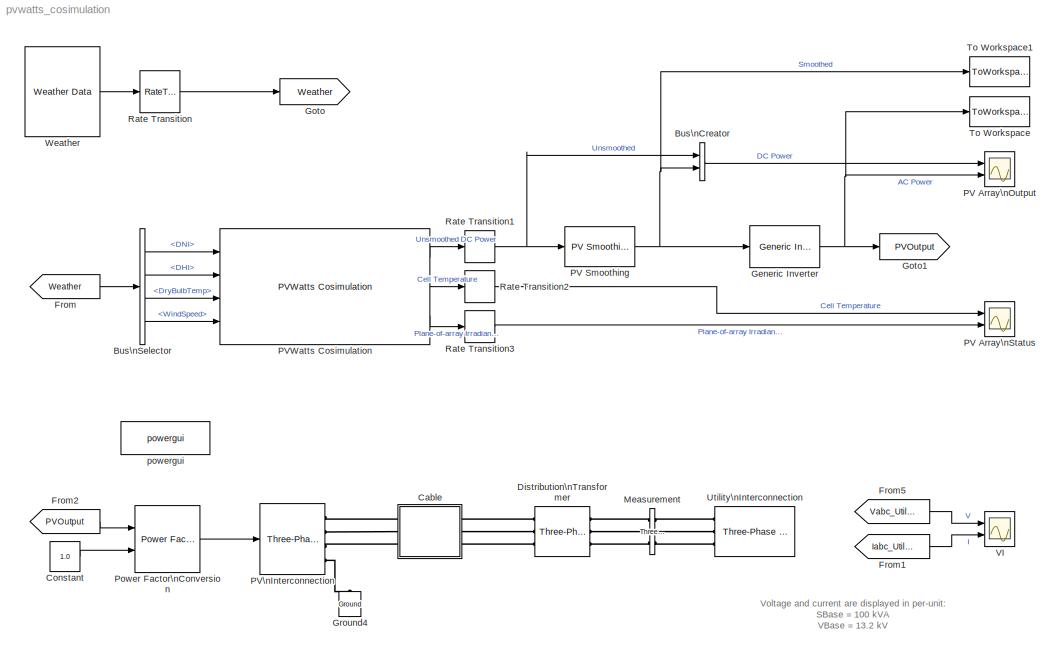
MODEL pvwatts_cosimulation
KIND model
BLOCK [BusCreator] Bus\nCreator
  DisplayOption = bar
  Inputs = 2
  Ports = [2, 1]
  SID = 76
BLOCK [BusSelector] Bus\nSelector
  OutputSignals = DNI,DHI,DryBulbTemp,WindSpeed
  Ports = [1, 4]
  SID = 67
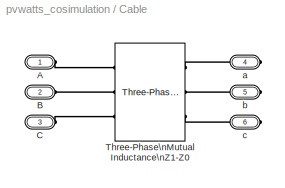
BLOCK [SubSystem] Cable
  FunctionWithSeparateData = off
  MaskHideContents = off
  MinAlgLoopOccurrences = off
  Opaque = off
  Ports = [0, 0, 0, 0, 0, 3, 3]
  PropExecContextOutsideSubsystem = off
  RTWSystemCode = Auto
  RequestExecContextInheritance = off
  SID = 93
BLOCK [PMIOPort] Cable/A
  Port = 1
  SID = 95
  Side = Left
BLOCK [PMIOPort] Cable/B
  Port = 2
  SID = 96
  Side = Left
BLOCK [PMIOPort] Cable/C 
  Port = 3
  SID = 97
  Side = Left
BLOCK [Reference] Cable/Three-Phase\nMutual Inductance\nZ1-Z0  REF=powerlib/Elements/Three-Phase\nMutual Inductance\nZ1-Z0
  AttributesFormatString = \\n
  LConnTagsString = a|b|c
  Ports = [0, 0, 0, 0, 0, 3, 3]
  PositiveSequence = [R1 X1/376.9911]*L/1000
  RConnTagsString = A|B|C
  SID = 94
  SourceBlock = powerlib/Elements/Three-Phase\nMutual Inductance\nZ1-Z0
  SourceType = Three-Phase Mutual Inductance Z1-Z0
  ZeroSequence = [R0 X0/376.9911]*L/1000
BLOCK [PMIOPort] Cable/a
  Port = 4
  SID = 98
  Side = Right
BLOCK [PMIOPort] Cable/b
  Port = 5
  SID = 99
  Side = Right
BLOCK [PMIOPort] Cable/c
  Port = 6
  SID = 100
  Side = Right
BLOCK [Constant] Constant
  SID = 103
  Value = 1.0
BLOCK [Reference] Distribution\nTransformer  REF=powerlib/Elements/Three-Phase\nTransformer\n(Two Windings)
  BreakLoop = off
  DataFile = 'hysteresis'
  DataType = off
  Hysteresis = off
  InitialFluxes = [ 0.8 , -0.8 , 0.7 ]
  Lm = 200
  Measurements = None
  MoreParameters = off
  NominalPower = [100e3 , 60]
  Ports = [0, 0, 0, 0, 0, 3, 3]
  Rm = 500
  SID = 91
  Saturation = [ 0,0 ; 0.0024,1.2 ; 1.0,1.52 ]
  SetInitialFlux = off
  SetSaturation = off
  SourceBlock = powerlib/Elements/Three-Phase\nTransformer\n(Two Windings)
  SourceType = Three-Phase Transformer (Two Windings)
  TransfoNumber = 1
  UNITS = pu
  Winding1 = [13.2e3 , 0.02/2 , 0.05/(120*pi)/2]
  Winding1Connection = Delta (D1)
  Winding2 = [480 , 0.02/2 , 0.05/(120*pi)/2]
  Winding2Connection = Yg
BLOCK [From] From
  GotoTag = Weather
  SID = 71
  TagVisibility = global
BLOCK [From] From1
  GotoTag = Iabc_Utility
  SID = 107
  TagVisibility = global
BLOCK [From] From2
  GotoTag = PVOutput
  SID = 109
  TagVisibility = global
BLOCK [From] From5
  GotoTag = Vabc_Utility
  SID = 106
  TagVisibility = global
BLOCK [Reference] Generic Inverter  REF=CampusEnergyModeling/PV/Generic Inverter
  Ports = [1, 1]
  SID = 69
  SourceBlock = CampusEnergyModeling/PV/Generic Inverter
  SourceType = Generic Inverter
  alpha = 500
  beta = 4e-3
  fixed_eff = 0.95
  gamma = 3e-7
  lookup_eff = [0.10, 0.80, 0.87, 0.93, 0.90, 0.88]
  lookup_in = [0, 10, 25, 50, 75, 100]
  lookup_out = [0, 9, 24, 49, 73, 97]
  lookup_pair = Input Power + Output Power
  max_power = 110e3
  model_type = Quadratic
  standby = 100
BLOCK [Goto] Goto
  GotoTag = Weather
  SID = 72
  TagVisibility = global
BLOCK [Goto] Goto1
  GotoTag = PVOutput
  SID = 108
  TagVisibility = global
BLOCK [Reference] Ground4  REF=powerlib/Elements/Ground
  LConnTagsString = a
  Ports = [0, 0, 0, 0, 0, 1]
  SID = 102
  SourceBlock = powerlib/Elements/Ground
  SourceType = Ground
BLOCK [Reference] Measurement  REF=powerlib/Measurements/Three-Phase\nV-I Measurement
  CurrentMeasurement = yes
  Ipu = on
  LabelI = Iabc_Utility
  LabelV = Vabc_Utility
  OutputType = Magnitude
  PSBequivalent = 0
  Pbase = 100e3
  PhasorSimulation = on
  Ports = [0, 0, 0, 0, 0, 3, 3]
  SID = 104
  SetLabelI = on
  SetLabelV = on
  SourceBlock = powerlib/Measurements/Three-Phase\nV-I Measurement
  SourceType = Three-Phase VI Measurement
  Vbase = 13.2e3
  VoltageMeasurement = phase-to-ground
  Vpu = on
  VpuLL = off
BLOCK [Scope] PV Array\nOutput
  DataFormat = StructureWithTime
  Floating = off
  LegendLocations = 0.64909     0.88872     0.29701     0.05513\n0.76157      0.4487     0.18453    0.031138
  LimitDataPoints = off
  NumInputPorts = 2
  Ports = [2]
  SID = 31
  SampleTime = 0
  ShowLegends = on
  TimeRange = 90000
  YMax = 140000~120000
  YMin = 0~-20000
  ZoomMode = xonly
BLOCK [Scope] PV Array\nStatus
  DataFormat = StructureWithTime
  Floating = off
  LegendLocations = 0.70024     0.91194     0.24599    0.031138\n0.63785     0.44793     0.30838    0.031138
  LimitDataPoints = off
  NumInputPorts = 2
  Ports = [2]
  SID = 60
  SampleTime = 0
  SaveName = ScopeData1
  ShowLegends = on
  TimeRange = 90000
  YMax = 70~1600
  YMin = 0~0
  ZoomMode = xonly
BLOCK [Reference] PV Smoothing  REF=CampusEnergyModeling/PV/PV Smoothing
  Ports = [1, 1]
  SID = 83
  SourceBlock = CampusEnergyModeling/PV/PV Smoothing
  SourceType = Photovoltaic Array Smoothing
  area = 33000
  coverage = 0.15
  density = 120
  sel = Array Size and Power Density
  size = 100e4
  tc = 15
BLOCK [Reference] PVWatts Cosimulation  REF=CampusEnergyModeling/PV/PVWatts Cosimulation
  Ports = [4, 3]
  SID = 70
  SourceBlock = CampusEnergyModeling/PV/PVWatts Cosimulation
  SourceType = PVWatts Cosimulation
  UserData = DataTag0
  UserDataPersistent = on
  alignment = Middle
  azimuth = 180
  derate = 0.95
  gamma = -0.5
  i_ref = 1000
  init_poa = 0
  init_tcell = 13.2
  lat = 39.74
  lon = -105.18
  output_celltemp = on
  output_dc = on
  output_poa = on
  poa_cutin = 0
  rotlim = 45
  start_time = 2012-06-01 00:00:00
  system_size = 100e3
  t_noct = 45
  t_ref = 25
  tilt = 39.74
  time_step = 10
  track_mode = Fixed
  tz = -6
  use_cell_data = off
  use_lat_tilt = on
BLOCK [Reference] PV\nInterconnection  REF=CampusEnergyModeling/Electrical/Three-Phase\nConstant Power\nSource or Load
  Conven = load
  PNom = 100e3
  Ports = [1, 0, 0, 0, 0, 0, 4]
  QNom = 0
  SID = 114
  SourceBlock = CampusEnergyModeling/Electrical/Three-Phase\nConstant Power\nSource or Load
  SourceType = Three-Phase Constant Power Source/Load
  VLow = 0.7
  VNom = 480
  fNom = 60
BLOCK [Reference] Power Factor\nConversion  REF=CampusEnergyModeling/Electrical/Power Factor\nConversion
  Ports = [2, 1]
  SID = 101
  SourceBlock = CampusEnergyModeling/Electrical/Power Factor\nConversion
  SourceType = Power Factor Conversion
  pfType = Lagging
BLOCK [RateTransition] Rate Transition
  OutPortSampleTime = 600
  OutPortSampleTimeOpt = Inherit
  SID = 68
BLOCK [RateTransition] Rate Transition1
  OutPortSampleTime = 600
  OutPortSampleTimeOpt = Inherit
  SID = 78
BLOCK [RateTransition] Rate Transition2
  OutPortSampleTime = 600
  OutPortSampleTimeOpt = Inherit
  SID = 80
BLOCK [RateTransition] Rate Transition3
  OutPortSampleTime = 600
  OutPortSampleTimeOpt = Inherit
  SID = 81
BLOCK [ToWorkspace] To Workspace
  MaxDataPoints = inf
  Ports = [1]
  SID = 111
  SampleTime = -1
  VariableName = ac_power
BLOCK [ToWorkspace] To Workspace1
  MaxDataPoints = inf
  Ports = [1]
  SID = 112
  SampleTime = -1
  VariableName = dc_power
BLOCK [Reference] Utility\nInterconnection  REF=powerlib/Electrical\nSources/Three-Phase Source
  BaseVoltage = 13.2e3
  BusType = swing
  Frequency = 60
  Inductance = 16.58e-3
  InternalConnection = Yg
  PhaseAngle = 0
  Ports = [0, 0, 0, 0, 0, 0, 3]
  Pref = 0
  Qmax = inf
  Qmin = -inf
  Qref = 0
  Resistance = 0.8929
  SID = 92
  ShortCircuitLevel = 1e6
  SourceBlock = powerlib/Electrical\nSources/Three-Phase Source
  SourceType = Three-Phase Source
  SpecifyImpedance = on
  Voltage = 13.2e3
  XRratio = 8
BLOCK [Scope] VI
  DataFormat = StructureWithTime
  Floating = off
  LegendLocations = 0.78149     0.86626     0.15449    0.079122\n0.78984     0.40071     0.14614    0.079122
  LimitDataPoints = off
  NumInputPorts = 2
  Ports = [2]
  SID = 105
  SampleTime = 0
  SaveName = ScopeData2
  ShowLegends = on
  TimeRange = 90000
  YMax = 1.015~1.4
  YMin = 0.975~0
  ZoomMode = xonly
BLOCK [Reference] Weather  REF=CampusEnergyModeling/Weather/Weather Data
  Ports = [0, 1]
  SID = 65
  SourceBlock = CampusEnergyModeling/Weather/Weather Data
  SourceType = Weather Data From File
  fname = Weather-short.mat
  initbus = on
BLOCK [Reference] powergui  REF=powerlib/powergui
  DisableRonSwitches = off
  DisableSnubberDevices = off
  DisableVfSwitches = off
  DisplayEquations = off
  DisplayStyle = 1
  EnableUseOfTLC = off
  ErrMax = 1e-4
  Frange = [0:2:500]
  FreqAxis = off
  FunctionMessages = off
  HookPort = off
  Interpol = off
  Iterations = 50
  MaxFrequency = 5000
  Pbase = 100e6
  Ports = []
  Priority = 2
  ResistiveCurrentMeasurement = off
  RestoreLinks = warning
  RmsSteady = 1
  SID = 110
  SPID = off
  SampleTime = Ts
  ShowGrid = off
  SolverType = Tustin
  SourceBlock = powerlib/powergui
  SourceType = PSB option menu block
  StartTime = 0.26
  SwTol = 0
  Ts = 0
  UnitsV = kV
  UnitsW = kW
  UserData = DataTag1
  UserDataPersistent = on
  Xlog = on
  Ylog = off
  ZoomFFT = on
  cycles = 2
  display = off
  echomessages = off
  frequency = 60
  frequencyindice = 60
  frequencyindicesteady = 1
  fundamental = 60
  methode = off
  save = off
  structure = Sig1
  variable = ZData
  x0status = blocks
ANNOTATION (root): Voltage and current are displayed in per-unit:\nSBase = 100 kVA\nVBase = 13.2 kV
LINE Bus\nCreator:1 -> PV Array\nOutput:1
LINE Bus\nSelector:1 -> PVWatts Cosimulation:1
LINE Bus\nSelector:2 -> PVWatts Cosimulation:2
LINE Bus\nSelector:3 -> PVWatts Cosimulation:3
LINE Bus\nSelector:4 -> PVWatts Cosimulation:4
LINE Constant:1 -> Power Factor\nConversion:2
LINE From1:1 -> VI:2
LINE From2:1 -> Power Factor\nConversion:1
LINE From5:1 -> VI:1
LINE From:1 -> Bus\nSelector:1
NET Generic Inverter:1 -> Goto1:1, PV Array\nOutput:2, To Workspace:1
NET PV Smoothing:1 -> Bus\nCreator:2, Generic Inverter:1, To Workspace1:1
LINE PVWatts Cosimulation:1 -> Rate Transition1:1
LINE PVWatts Cosimulation:2 -> Rate Transition2:1
LINE PVWatts Cosimulation:3 -> Rate Transition3:1
LINE Power Factor\nConversion:1 -> PV\nInterconnection:1
NET Rate Transition1:1 -> Bus\nCreator:1, PV Smoothing:1
LINE Rate Transition2:1 -> PV Array\nStatus:1
LINE Rate Transition3:1 -> PV Array\nStatus:2
LINE Rate Transition:1 -> Goto:1
LINE Weather:1 -> Rate Transition:1
PLINE Cable/A:RConn1 -- Cable/Three-Phase\nMutual Inductance\nZ1-Z0:LConn1
PLINE Cable/B:RConn1 -- Cable/Three-Phase\nMutual Inductance\nZ1-Z0:LConn2
PLINE Cable/C :RConn1 -- Cable/Three-Phase\nMutual Inductance\nZ1-Z0:LConn3
PLINE Cable/Three-Phase\nMutual Inductance\nZ1-Z0:RConn1 -- Cable/a:RConn1
PLINE Cable/Three-Phase\nMutual Inductance\nZ1-Z0:RConn2 -- Cable/b:RConn1
PLINE Cable/Three-Phase\nMutual Inductance\nZ1-Z0:RConn3 -- Cable/c:RConn1
PLINE Cable:LConn1 -- Distribution\nTransformer:RConn1
PLINE Cable:LConn2 -- Distribution\nTransformer:RConn2
PLINE Cable:LConn3 -- Distribution\nTransformer:RConn3
PLINE Cable:RConn1 -- PV\nInterconnection:RConn1
PLINE Cable:RConn2 -- PV\nInterconnection:RConn2
PLINE Cable:RConn3 -- PV\nInterconnection:RConn3
PLINE Distribution\nTransformer:LConn1 -- Measurement:RConn1
PLINE Distribution\nTransformer:LConn2 -- Measurement:RConn2
PLINE Distribution\nTransformer:LConn3 -- Measurement:RConn3
PLINE Ground4:LConn1 -- PV\nInterconnection:RConn4
PLINE Measurement:LConn1 -- Utility\nInterconnection:RConn1
PLINE Measurement:LConn2 -- Utility\nInterconnection:RConn2
PLINE Measurement:LConn3 -- Utility\nInterconnection:RConn3
note: NET lines group one-source signal fan-out (src -> all destinations, sorted); 1:1 wires keep LINE
